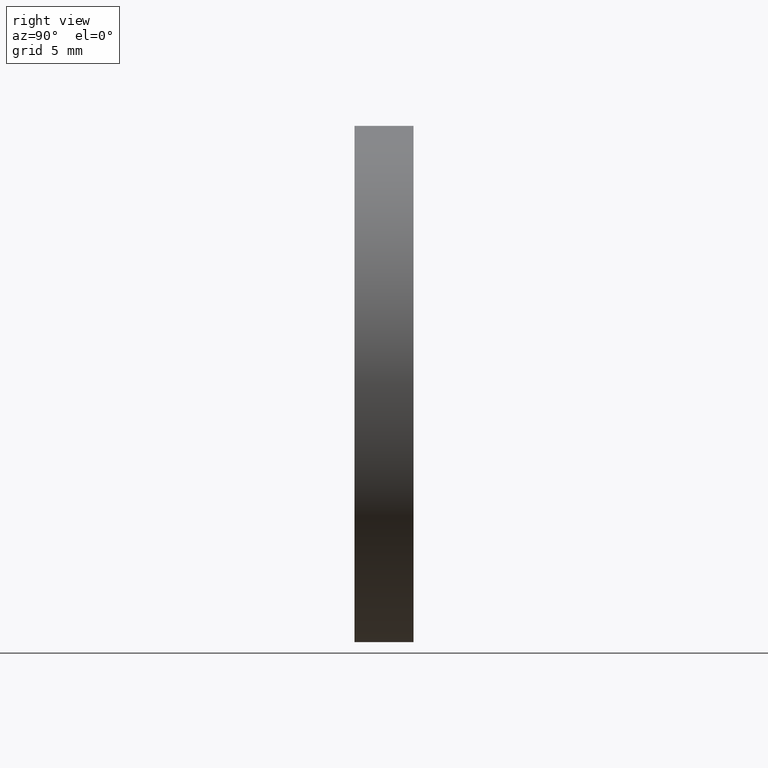
[diagram: clean part render]
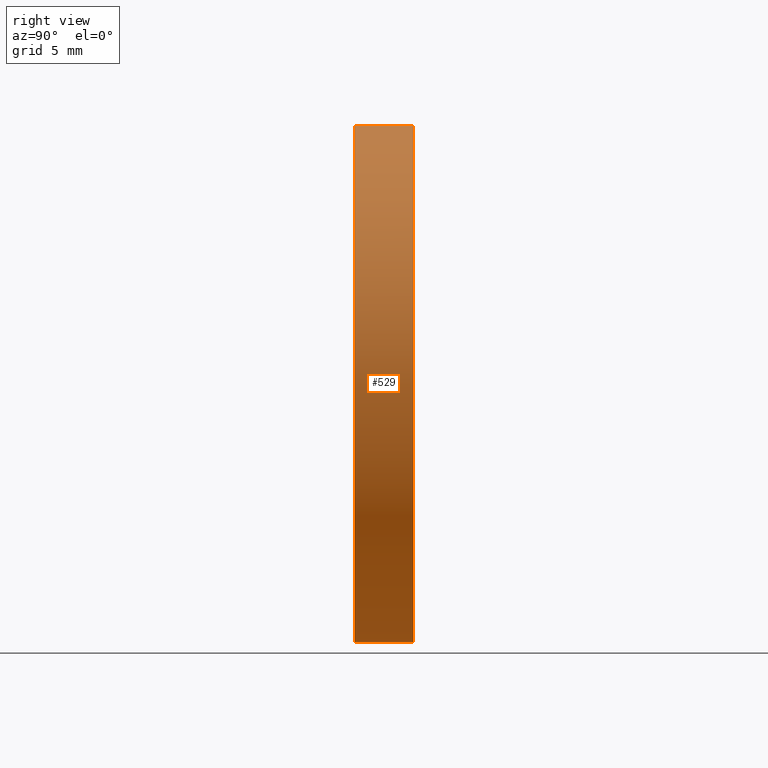
[diagram: same view with one face highlighted and labeled with its STEP entity id]
A machine part, right view. The second image highlights one B-rep face of the part: STEP entity #529.
In plain terms, the highlighted cylindrical surface (partial cylindrical patch) has radius 17.5 mm, axis along (-0, -1, -0).
Its self-contained STEP definition (entity closure, byte-faithful):
#70 = DIRECTION ( 'NONE',  ( -0.0000000000000000000, -1.000000000000000000, -0.0000000000000000000 ) ) ;
#250 = EDGE_LOOP ( 'NONE', ( #4666, #6230, #8741, #4076 ) ) ;
#344 = CARTESIAN_POINT ( 'NONE',  ( 2.143131898507868600E-015, 4.000000000000000000, 17.50000000000000400 ) ) ;
#516 = AXIS2_PLACEMENT_3D ( 'NONE', #11791, #834, #11697 ) ;
#529 = ADVANCED_FACE ( 'NONE', ( #4768 ), #8864, .T. ) ;
#834 = DIRECTION ( 'NONE',  ( 0.0000000000000000000, 1.000000000000000000, 0.0000000000000000000 ) ) ;
#892 = LINE ( 'NONE', #344, #7609 ) ;
#942 = CARTESIAN_POINT ( 'NONE',  ( 0.0000000000000000000, 4.000000000000000000, 0.0000000000000000000 ) ) ;
#966 = CARTESIAN_POINT ( 'NONE',  ( 0.0000000000000000000, 4.000000000000000000, -17.50000000000000400 ) ) ;
#1359 = DIRECTION ( 'NONE',  ( -0.0000000000000000000, -1.000000000000000000, -0.0000000000000000000 ) ) ;
#1400 = CARTESIAN_POINT ( 'NONE',  ( 0.0000000000000000000, 4.000000000000000000, 0.0000000000000000000 ) ) ;
#1642 = DIRECTION ( 'NONE',  ( -0.0000000000000000000, -1.000000000000000000, -0.0000000000000000000 ) ) ;
#1724 = VERTEX_POINT ( 'NONE', #12587 ) ;
#3285 = EDGE_CURVE ( 'NONE', #4216, #1724, #4630, .T. ) ;
#4049 = CARTESIAN_POINT ( 'NONE',  ( 2.143131898507868600E-015, 0.0000000000000000000, 17.50000000000000400 ) ) ;
#4076 = ORIENTED_EDGE ( 'NONE', *, *, #3285, .F. ) ;
#4216 = VERTEX_POINT ( 'NONE', #12038 ) ;
#4514 = DIRECTION ( 'NONE',  ( 0.0000000000000000000, 0.0000000000000000000, -1.000000000000000000 ) ) ;
#4630 = LINE ( 'NONE', #966, #5911 ) ;
#4666 = ORIENTED_EDGE ( 'NONE', *, *, #8507, .F. ) ;
#4768 = FACE_OUTER_BOUND ( 'NONE', #250, .T. ) ;
#4864 = CIRCLE ( 'NONE', #516, 17.50000000000000400 ) ;
#5193 = EDGE_CURVE ( 'NONE', #8918, #7020, #892, .T. ) ;
#5728 = AXIS2_PLACEMENT_3D ( 'NONE', #1400, #1642, #4514 ) ;
#5890 = EDGE_CURVE ( 'NONE', #7020, #1724, #4864, .T. ) ;
#5911 = VECTOR ( 'NONE', #70, 1000.000000000000000 ) ;
#6230 = ORIENTED_EDGE ( 'NONE', *, *, #5193, .T. ) ;
#6861 = CARTESIAN_POINT ( 'NONE',  ( 2.143131898507868600E-015, 4.000000000000000000, 17.50000000000000400 ) ) ;
#7020 = VERTEX_POINT ( 'NONE', #4049 ) ;
#7609 = VECTOR ( 'NONE', #1359, 1000.000000000000000 ) ;
#7887 = DIRECTION ( 'NONE',  ( 0.0000000000000000000, 1.000000000000000000, 0.0000000000000000000 ) ) ;
#7927 = DIRECTION ( 'NONE',  ( 0.0000000000000000000, 0.0000000000000000000, 1.000000000000000000 ) ) ;
#8507 = EDGE_CURVE ( 'NONE', #8918, #4216, #10970, .T. ) ;
#8741 = ORIENTED_EDGE ( 'NONE', *, *, #5890, .T. ) ;
#8864 = CYLINDRICAL_SURFACE ( 'NONE', #5728, 17.50000000000000400 ) ;
#8918 = VERTEX_POINT ( 'NONE', #6861 ) ;
#9455 = AXIS2_PLACEMENT_3D ( 'NONE', #942, #7887, #7927 ) ;
#10970 = CIRCLE ( 'NONE', #9455, 17.50000000000000400 ) ;
#11697 = DIRECTION ( 'NONE',  ( 0.0000000000000000000, 0.0000000000000000000, 1.000000000000000000 ) ) ;
#11791 = CARTESIAN_POINT ( 'NONE',  ( 0.0000000000000000000, 0.0000000000000000000, 0.0000000000000000000 ) ) ;
#12038 = CARTESIAN_POINT ( 'NONE',  ( 0.0000000000000000000, 4.000000000000000000, -17.50000000000000400 ) ) ;
#12587 = CARTESIAN_POINT ( 'NONE',  ( 0.0000000000000000000, 0.0000000000000000000, -17.50000000000000400 ) ) ;